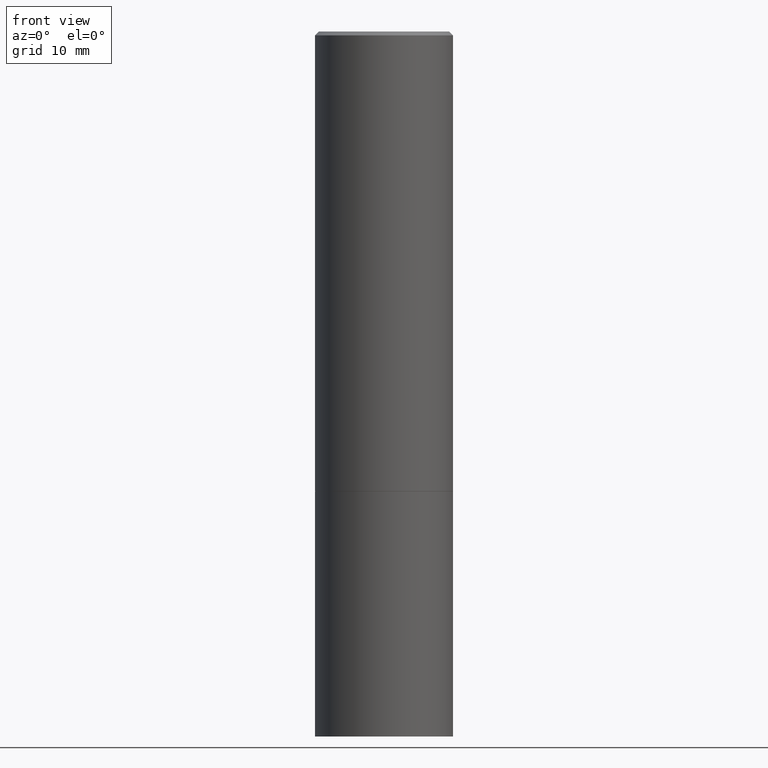
[diagram: clean part render]
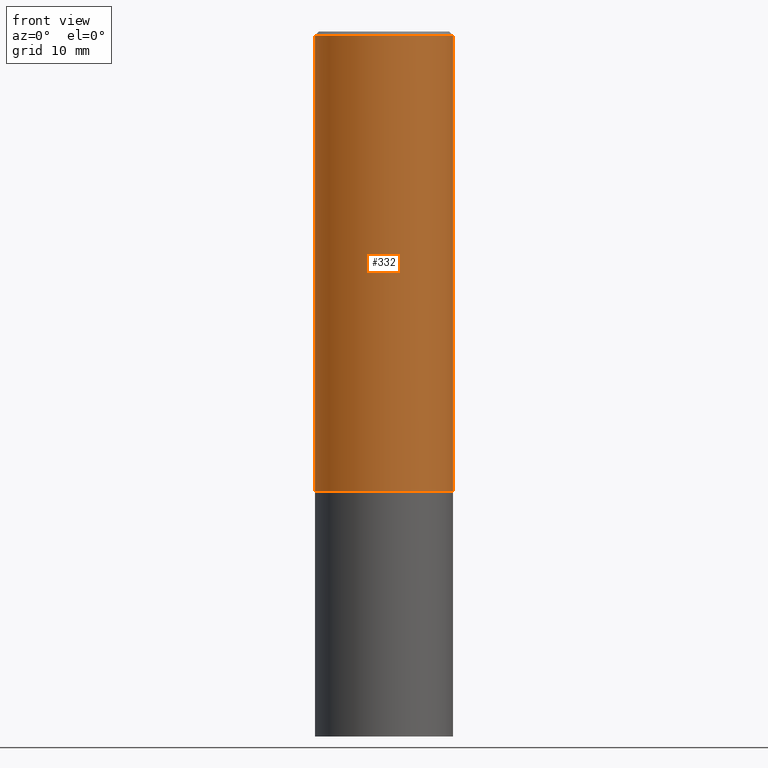
[diagram: same view with one face highlighted and labeled with its STEP entity id]
A machine part, front view. The second image highlights one B-rep face of the part: STEP entity #332.
In plain terms, the highlighted cylindrical surface (partial cylindrical patch) has radius 9.0005 mm, axis along (-0, 0, 1).
Its self-contained STEP definition (entity closure, byte-faithful):
#2 = CIRCLE ( 'NONE', #217, 0.3543499999999999983 ) ;
#12 = AXIS2_PLACEMENT_3D ( 'NONE', #63, #54, #227 ) ;
#15 = EDGE_CURVE ( 'NONE', #64, #85, #42, .T. ) ;
#23 = CYLINDRICAL_SURFACE ( 'NONE', #12, 0.3543499999999998873 ) ;
#36 = ORIENTED_EDGE ( 'NONE', *, *, #78, .T. ) ;
#37 = DIRECTION ( 'NONE',  ( -2.445468806185136597E-29, 3.491481338843145583E-15, 1.000000000000000000 ) ) ;
#40 = CARTESIAN_POINT ( 'NONE',  ( -0.3543499999999997208, 2.404583198061263424E-15, -0.02000000000000008021 ) ) ;
#42 = CIRCLE ( 'NONE', #255, 0.3543499999999997208 ) ;
#45 = CARTESIAN_POINT ( 'NONE',  ( 0.3543499999999998873, -2.474412824838127905E-15, 1.727873240503289188E-29 ) ) ;
#54 = DIRECTION ( 'NONE',  ( -2.445468806185136597E-29, 3.491481338843145583E-15, 1.000000000000000000 ) ) ;
#63 = CARTESIAN_POINT ( 'NONE',  ( 0.000000000000000000, 0.000000000000000000, 0.000000000000000000 ) ) ;
#64 = VERTEX_POINT ( 'NONE', #40 ) ;
#75 = DIRECTION ( 'NONE',  ( 1.000000000000000000, -6.982962677686265922E-15, 0.000000000000000000 ) ) ;
#78 = EDGE_CURVE ( 'NONE', #112, #85, #151, .T. ) ;
#84 = DIRECTION ( 'NONE',  ( -2.445468806185136877E-29, 3.491481338843145188E-15, 1.000000000000000000 ) ) ;
#85 = VERTEX_POINT ( 'NONE', #313 ) ;
#103 = FACE_OUTER_BOUND ( 'NONE', #142, .T. ) ;
#112 = VERTEX_POINT ( 'NONE', #121 ) ;
#121 = CARTESIAN_POINT ( 'NONE',  ( 0.3543499999999999983, -1.071849856211456176E-14, -2.361199999999999743 ) ) ;
#142 = EDGE_LOOP ( 'NONE', ( #198, #299, #36, #318 ) ) ;
#151 = LINE ( 'NONE', #45, #330 ) ;
#159 = CARTESIAN_POINT ( 'NONE',  ( 5.774240945164344150E-29, -8.244085737276433464E-15, -2.361199999999999743 ) ) ;
#169 = EDGE_CURVE ( 'NONE', #258, #112, #2, .T. ) ;
#198 = ORIENTED_EDGE ( 'NONE', *, *, #365, .F. ) ;
#217 = AXIS2_PLACEMENT_3D ( 'NONE', #159, #252, #75 ) ;
#220 = CARTESIAN_POINT ( 'NONE',  ( -0.3543499999999999983, -1.639149497860731807E-15, -2.361199999999999743 ) ) ;
#225 = VECTOR ( 'NONE', #340, 39.37007874015748143 ) ;
#227 = DIRECTION ( 'NONE',  ( 1.000000000000000000, -6.982962677686266711E-15, 4.876176775795935232E-29 ) ) ;
#239 = CARTESIAN_POINT ( 'NONE',  ( 4.890937612370293302E-31, -6.982962677686318726E-17, -0.02000000000000008021 ) ) ;
#252 = DIRECTION ( 'NONE',  ( -2.445468806185136597E-29, 3.491481338843145583E-15, 1.000000000000000000 ) ) ;
#255 = AXIS2_PLACEMENT_3D ( 'NONE', #239, #37, #347 ) ;
#256 = CARTESIAN_POINT ( 'NONE',  ( -0.3543499999999998873, 2.517808184165914208E-15, -1.743024649231825225E-29 ) ) ;
#258 = VERTEX_POINT ( 'NONE', #220 ) ;
#299 = ORIENTED_EDGE ( 'NONE', *, *, #169, .T. ) ;
#313 = CARTESIAN_POINT ( 'NONE',  ( 0.3543499999999997208, -2.500847092287203718E-15, -0.02000000000000008021 ) ) ;
#318 = ORIENTED_EDGE ( 'NONE', *, *, #15, .F. ) ;
#330 = VECTOR ( 'NONE', #84, 39.37007874015748143 ) ;
#332 = ADVANCED_FACE ( 'NONE', ( #103 ), #23, .T. ) ;
#340 = DIRECTION ( 'NONE',  ( -2.445468806185136877E-29, 3.491481338843145188E-15, 1.000000000000000000 ) ) ;
#347 = DIRECTION ( 'NONE',  ( 1.000000000000000000, -6.982962677686266711E-15, 0.000000000000000000 ) ) ;
#365 = EDGE_CURVE ( 'NONE', #258, #64, #366, .T. ) ;
#366 = LINE ( 'NONE', #256, #225 ) ;